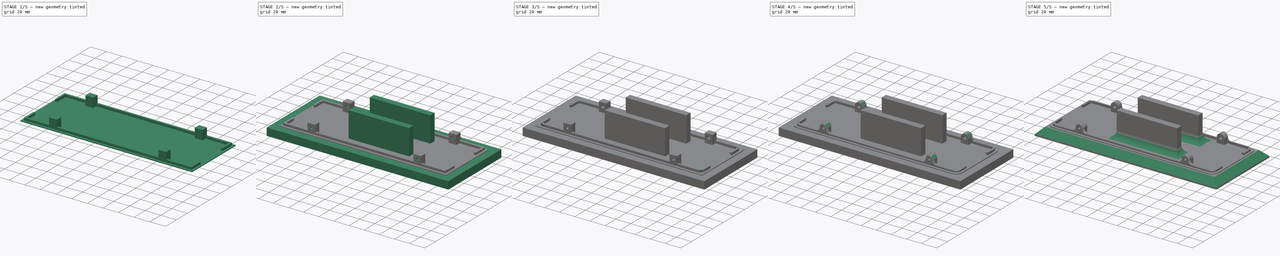
[diagram: build sequence overview — one tinted view per stage of 5, left to right]
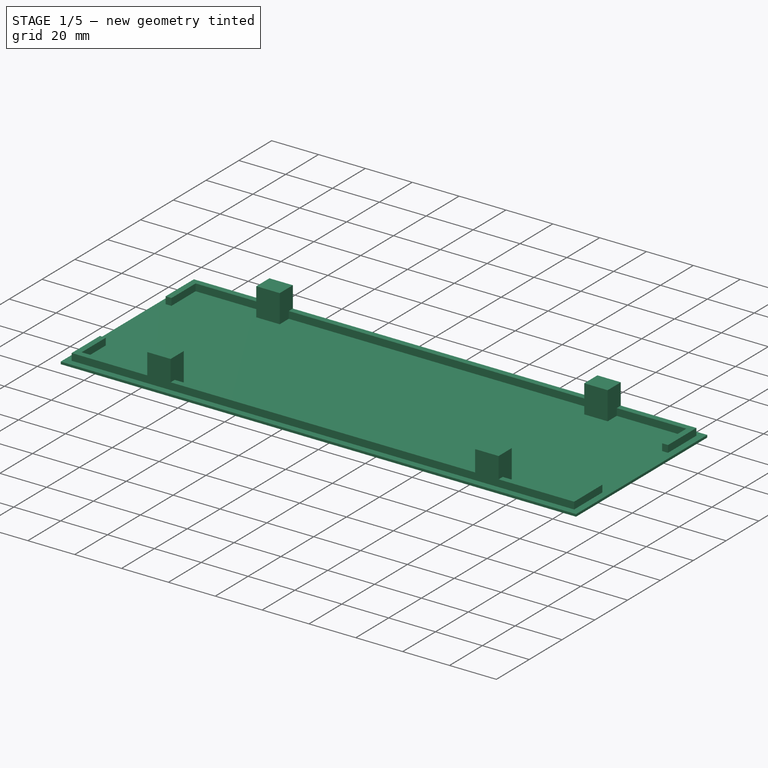
[diagram: stage 1 of 5 — iso view after this stage's code; geometry added in this stage tinted green]
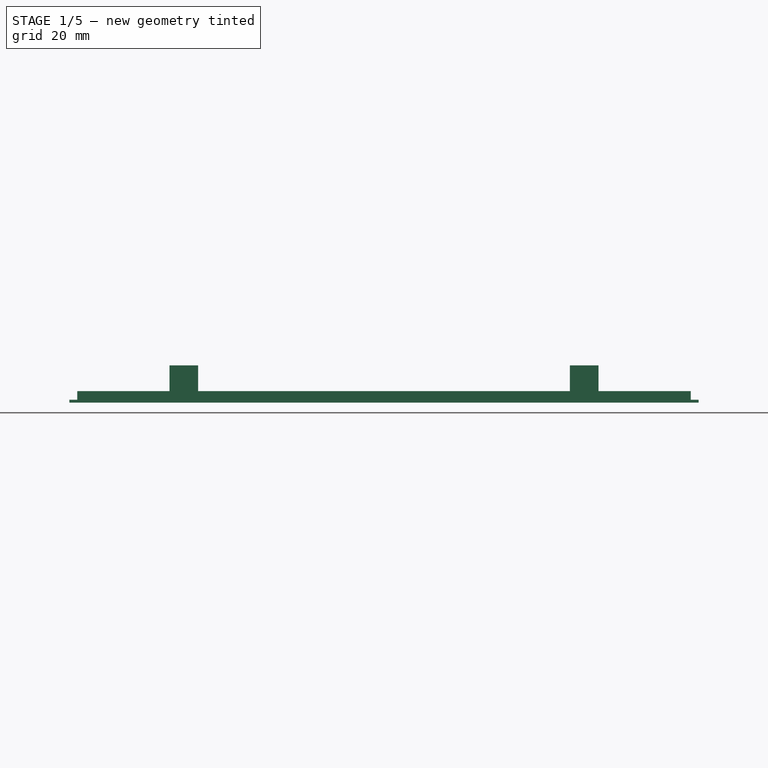
[diagram: stage 1 of 5 — front view after this stage's code; geometry added in this stage tinted green]
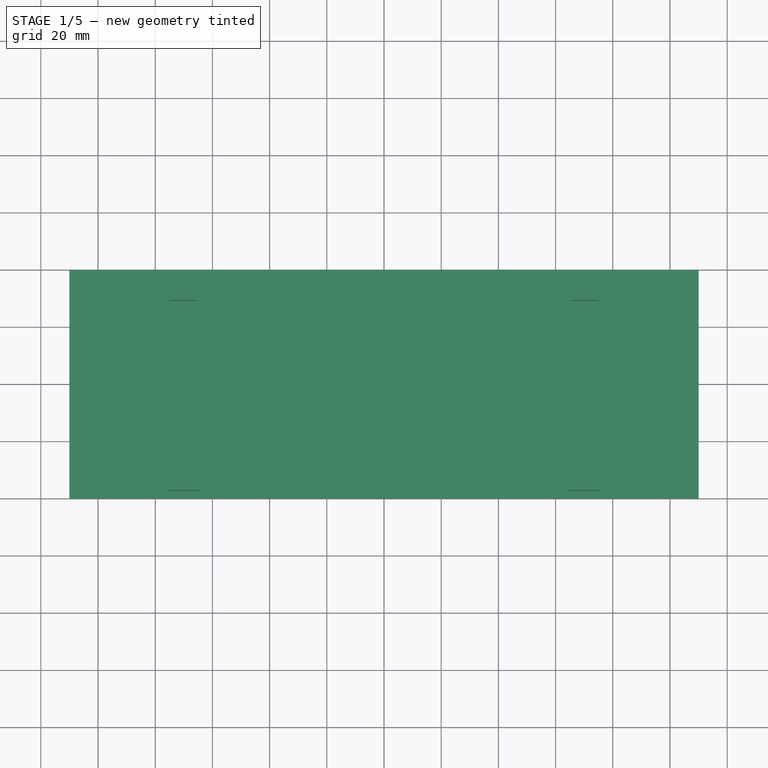
[diagram: stage 1 of 5 — top view after this stage's code; geometry added in this stage tinted green]
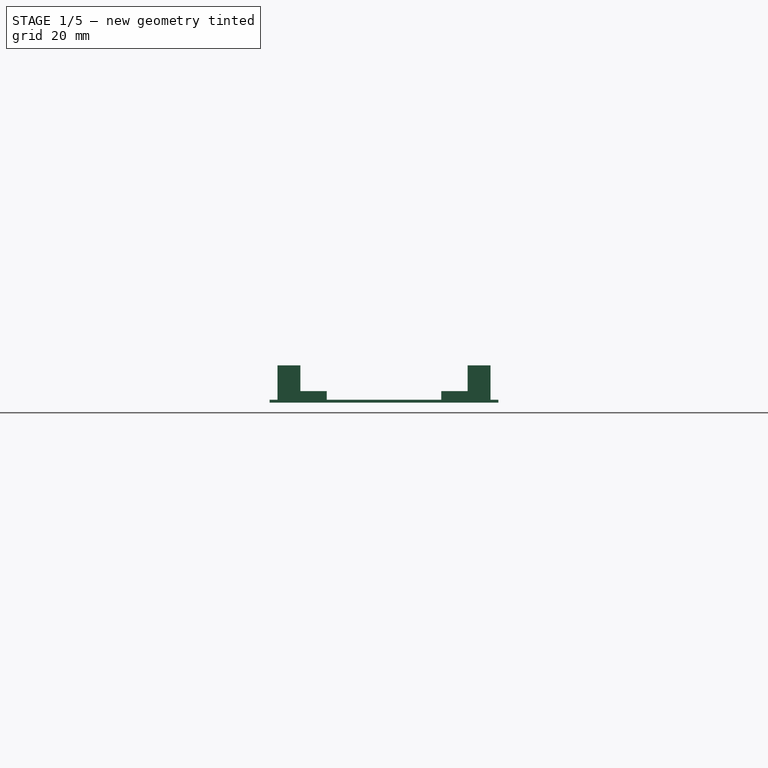
[diagram: stage 1 of 5 — right view after this stage's code; geometry added in this stage tinted green]
FCSTD DOCUMENT  (FreeCAD 1.0R39319 (Git))
Label: base_mk3
License: All rights reserved
LicenseURL: https://en.wikipedia.org/wiki/All_rights_reserved
objects: Sketcher::SketchObject×9, PartDesign::Fillet×7, PartDesign::Pad×5, PartDesign::Pocket×4, PartDesign::Chamfer×3, PartDesign::Body×1
note: 76 computed .brp shape members not serialized (recipe doc carries the construction recipe); baked Part::Feature solids carry a one-line shape summary decoded from their .brp

FEATURE [Sketcher::SketchObject] Sketch
  ArcFitTolerance = 1e-06
  AttachmentSupport = -> [XY_Plane]
  FullyConstrained = true
  MakeInternals = false
  MapMode = 5
  sketch-geometry (4):
    g0: LineSegment StartX=-110 StartY=40 StartZ=0 EndX=-110 EndY=-40 EndZ=0
    g1: LineSegment StartX=-110 StartY=-40 StartZ=0 EndX=110 EndY=-40 EndZ=0
    g2: LineSegment StartX=110 StartY=-40 StartZ=0 EndX=110 EndY=40 EndZ=0
    g3: LineSegment StartX=110 StartY=40 StartZ=0 EndX=-110 EndY=40 EndZ=0
  constraints (12):
    c: Coincident(g0,g1)
    c: Coincident(g1,g2)
    c: Coincident(g2,g3)
    c: Coincident(g3,g0)
    c: Vertical(g0)
    c: Vertical(g2)
    c: Horizontal(g1)
    c: Horizontal(g3)
    c: DistanceX(g3,g3) = 220
    c: DistanceX(g0,g-1) = 110
    c: DistanceY(g0,g0) = 80
    c: DistanceY(g-1,g0) = 40
FEATURE [PartDesign::Pad] Pad
  Direction = (0,0,1)
  Length = 1
  Length2 = 10
  Profile = -> Sketch
  ReferenceAxis = -> Sketch [N_Axis]
  Refine = true
  Suppressed = false
  Type = 0
FEATURE [Sketcher::SketchObject] Sketch001  label="perimter_wall"
  ArcFitTolerance = 1e-06
  AttachmentSupport = -> [Pad]
  ExternalGeometry = -> [Pad]
  FullyConstrained = true
  MakeInternals = false
  MapMode = 5
  Placement = pos=(0,0,1) rot=(0,0,1;0rad)
  sketch-geometry (8):
    g0: LineSegment StartX=-107.25 StartY=37.25 StartZ=0 EndX=-107.25 EndY=-37.25 EndZ=0
    g1: LineSegment StartX=-107.25 StartY=-37.25 StartZ=0 EndX=107.25 EndY=-37.25 EndZ=0
    g2: LineSegment StartX=107.25 StartY=-37.25 StartZ=0 EndX=107.25 EndY=37.25 EndZ=0
    g3: LineSegment StartX=107.25 StartY=37.25 StartZ=0 EndX=-107.25 EndY=37.25 EndZ=0
    g4: LineSegment StartX=-104.75 StartY=34.75 StartZ=0 EndX=-104.75 EndY=-34.75 EndZ=0
    g5: LineSegment StartX=-104.75 StartY=-34.75 StartZ=0 EndX=104.75 EndY=-34.75 EndZ=0
    g6: LineSegment StartX=104.75 StartY=-34.75 StartZ=0 EndX=104.75 EndY=34.75 EndZ=0
    g7: LineSegment StartX=104.75 StartY=34.75 StartZ=0 EndX=-104.75 EndY=34.75 EndZ=0
  constraints (24):
    c: Coincident(g0,g1)
    c: Coincident(g1,g2)
    c: Coincident(g2,g3)
    c: Coincident(g3,g0)
    c: Vertical(g0)
    c: Vertical(g2)
    c: Horizontal(g1)
    c: Horizontal(g3)
    c: DistanceX(g-3,g0) = 2.75
    c: DistanceY(g0,g-3) = 2.75
    c: DistanceX(g1,g-4) = 2.75
    c: DistanceY(g-4,g1) = 2.75
    c: Coincident(g4,g5)
    c: Coincident(g5,g6)
    c: Coincident(g6,g7)
    c: Coincident(g7,g4)
    c: Vertical(g4)
    c: Vertical(g6)
    c: Horizontal(g5)
    c: Horizontal(g7)
    c: DistanceX(g0,g4) = 2.5
    c: DistanceY(g4,g0) = 2.5
    c: DistanceX(g5,g1) = 2.5
    c: DistanceY(g1,g5) = 2.5
FEATURE [PartDesign::Pad] Pad001
  BaseFeature = -> Pad
  Direction = (0,0,1)
  Length = 3
  Length2 = 10
  Profile = -> Sketch001
  ReferenceAxis = -> Sketch001 [N_Axis]
  Refine = true
  Suppressed = false
  Type = 0
FEATURE [Sketcher::SketchObject] Sketch002  label="slots_in_edging"
  ArcFitTolerance = 1e-06
  AttachmentSupport = -> [Pad001]
  ExternalGeometry = -> [Pad001]
  FullyConstrained = true
  MakeInternals = false
  MapMode = 5
  Placement = pos=(0,0,4) rot=(0,0,1;0rad)
  sketch-geometry (8):
    g0: LineSegment StartX=-107.25 StartY=20 StartZ=0 EndX=-107.25 EndY=-20 EndZ=0
    g1: LineSegment StartX=-107.25 StartY=-20 StartZ=0 EndX=-104.75 EndY=-20 EndZ=0
    g2: LineSegment StartX=-104.75 StartY=-20 StartZ=0 EndX=-104.75 EndY=20 EndZ=0
    g3: LineSegment StartX=-104.75 StartY=20 StartZ=0 EndX=-107.25 EndY=20 EndZ=0
    g4: LineSegment StartX=104.75 StartY=20 StartZ=0 EndX=104.75 EndY=-20 EndZ=0
    g5: LineSegment StartX=104.75 StartY=-20 StartZ=0 EndX=107.25 EndY=-20 EndZ=0
    g6: LineSegment StartX=107.25 StartY=-20 StartZ=0 EndX=107.25 EndY=20 EndZ=0
    g7: LineSegment StartX=107.25 StartY=20 StartZ=0 EndX=104.75 EndY=20 EndZ=0
  constraints (24):
    c: Coincident(g0,g1)
    c: Coincident(g1,g2)
    c: Coincident(g2,g3)
    c: Coincident(g3,g0)
    c: Vertical(g0)
    c: Vertical(g2)
    c: Horizontal(g1)
    c: Horizontal(g3)
    c: Coincident(g4,g5)
    c: Coincident(g5,g6)
    c: Coincident(g6,g7)
    c: Coincident(g7,g4)
    c: Vertical(g4)
    c: Vertical(g6)
    c: Horizontal(g5)
    c: Horizontal(g7)
    c: Horizontal(g1,g4)
    c: Horizontal(g4,g2)
    c: DistanceY(g2,g2) = 40
    c: DistanceY(g-1,g2) = 20
    c: Vertical(g4,g-5)
    c: Vertical(g6,g-6)
    c: Vertical(g-3,g2)
    c: Vertical(g-4,g0)
FEATURE [Sketcher::SketchObject] Sketch007  label="outer_base"
  ArcFitTolerance = 1e-06
  FullyConstrained = true
  MakeInternals = false
  MapMode = 5
  Placement = pos=(0,0,0) rot=(1,0,0;3.14159rad)
  sketch-geometry (4):
    g0: LineSegment StartX=-120 StartY=50 StartZ=0 EndX=-120 EndY=-50 EndZ=0
    g1: LineSegment StartX=-120 StartY=-50 StartZ=0 EndX=120 EndY=-50 EndZ=0
    g2: LineSegment StartX=120 StartY=-50 StartZ=0 EndX=120 EndY=50 EndZ=0
    g3: LineSegment StartX=120 StartY=50 StartZ=0 EndX=-120 EndY=50 EndZ=0
  constraints (12):
    c: Coincident(g0,g1)
    c: Coincident(g1,g2)
    c: Coincident(g2,g3)
    c: Coincident(g3,g0)
    c: Vertical(g0)
    c: Vertical(g2)
    c: Horizontal(g1)
    c: Horizontal(g3)
    c: DistanceX(g0,g-3) = 10
    c: DistanceY(g-3,g0) = 10
    c: DistanceX(g-4,g1) = 10
    c: DistanceY(g1,g-4) = 10
FEATURE [Sketcher::SketchObject] Sketch008  label="battery_supports"
  ArcFitTolerance = 1e-06
  FullyConstrained = true
  MakeInternals = false
  MapMode = 5
  Placement = pos=(0,0,1) rot=(0,0,1;0rad)
  sketch-geometry (8):
    g0: LineSegment StartX=-30 StartY=24 StartZ=0 EndX=-30 EndY=16 EndZ=0
    g1: LineSegment StartX=-30 StartY=16 StartZ=0 EndX=50 EndY=16 EndZ=0
    g2: LineSegment StartX=50 StartY=16 StartZ=0 EndX=50 EndY=24 EndZ=0
    g3: LineSegment StartX=50 StartY=24 StartZ=0 EndX=-30 EndY=24 EndZ=0
    g4: LineSegment StartX=-30 StartY=-16 StartZ=0 EndX=-30 EndY=-24 EndZ=0
    g5: LineSegment StartX=-30 StartY=-24 StartZ=0 EndX=50 EndY=-24 EndZ=0
    g6: LineSegment StartX=50 StartY=-24 StartZ=0 EndX=50 EndY=-16 EndZ=0
    g7: LineSegment StartX=50 StartY=-16 StartZ=0 EndX=-30 EndY=-16 EndZ=0
  constraints (24):
    c: Coincident(g0,g1)
    c: Coincident(g1,g2)
    c: Coincident(g2,g3)
    c: Coincident(g3,g0)
    c: Vertical(g0)
    c: Vertical(g2)
    c: Horizontal(g1)
    c: Horizontal(g3)
    c: Coincident(g4,g5)
    c: Coincident(g5,g6)
    c: Coincident(g6,g7)
    c: Coincident(g7,g4)
    c: Vertical(g4)
    c: Vertical(g6)
    c: Horizontal(g5)
    c: Horizontal(g7)
    c: Equal(g6,g2)
    c: DistanceY(g6,g6) = 8
    c: Vertical(g6,g1)
    c: DistanceX(g0,g-1) = 30
    c: Equal(g7,g3)
    c: DistanceX(g-1,g1) = 50
    c: DistanceY(g-1,g0) = 16
    c: DistanceY(g4,g-1) = 16
FEATURE [PartDesign::Pocket] Pocket
  BaseFeature = -> Pad001
  Direction = (0,0,-1)
  Length = 3
  Length2 = 5
  Profile = -> Sketch002
  ReferenceAxis = -> Sketch002 [N_Axis]
  Refine = true
  Suppressed = false
  Type = 0
FEATURE [Sketcher::SketchObject] Sketch003  label="threaded_bush_holders"
  ArcFitTolerance = 1e-06
  ExternalGeometry = -> [Pocket]
  FullyConstrained = true
  MakeInternals = false
  MapMode = 5
  Placement = pos=(0,0,1) rot=(0,0,1;0rad)
  sketch-geometry (16):
    g0: LineSegment StartX=-75 StartY=29.25 StartZ=0 EndX=-65 EndY=29.25 EndZ=0
    g1: LineSegment StartX=-65 StartY=29.25 StartZ=0 EndX=-65 EndY=37.25 EndZ=0
    g2: LineSegment StartX=-65 StartY=37.25 StartZ=0 EndX=-75 EndY=37.25 EndZ=0
    g3: LineSegment StartX=-75 StartY=37.25 StartZ=0 EndX=-75 EndY=29.25 EndZ=0
    g4: LineSegment StartX=65 StartY=29.25 StartZ=0 EndX=75 EndY=29.25 EndZ=0
    g5: LineSegment StartX=75 StartY=29.25 StartZ=0 EndX=75 EndY=37.25 EndZ=0
    g6: LineSegment StartX=75 StartY=37.25 StartZ=0 EndX=65 EndY=37.25 EndZ=0
    g7: LineSegment StartX=65 StartY=37.25 StartZ=0 EndX=65 EndY=29.25 EndZ=0
    g8: LineSegment StartX=65 StartY=-29.25 StartZ=0 EndX=65 EndY=-37.25 EndZ=0
    g9: LineSegment StartX=65 StartY=-37.25 StartZ=0 EndX=75 EndY=-37.25 EndZ=0
    g10: LineSegment StartX=75 StartY=-37.25 StartZ=0 EndX=75 EndY=-29.25 EndZ=0
    g11: LineSegment StartX=75 StartY=-29.25 StartZ=0 EndX=65 EndY=-29.25 EndZ=0
    g12: LineSegment StartX=-75 StartY=-29.25 StartZ=0 EndX=-75 EndY=-37.25 EndZ=0
    g13: LineSegment StartX=-75 StartY=-37.25 StartZ=0 EndX=-65 EndY=-37.25 EndZ=0
    g14: LineSegment StartX=-65 StartY=-37.25 StartZ=0 EndX=-65 EndY=-29.25 EndZ=0
    g15: LineSegment StartX=-65 StartY=-29.25 StartZ=0 EndX=-75 EndY=-29.25 EndZ=0
  constraints (48):
    c: Coincident(g0,g1)
    c: Coincident(g1,g2)
    c: Coincident(g2,g3)
    c: Coincident(g3,g0)
    c: Horizontal(g0)
    c: Horizontal(g2)
    c: Vertical(g1)
    c: Vertical(g3)
    c: Coincident(g4,g5)
    c: Coincident(g5,g6)
    c: Coincident(g6,g7)
    c: Coincident(g7,g4)
    c: Horizontal(g4)
    c: Horizontal(g6)
    c: Vertical(g5)
    c: Vertical(g7)
    c: Coincident(g8,g9)
    c: Coincident(g9,g10)
    c: Coincident(g10,g11)
    c: Coincident(g11,g8)
    c: Vertical(g8)
    c: Vertical(g10)
    c: Horizontal(g9)
    c: Horizontal(g11)
    c: Coincident(g12,g13)
    c: Coincident(g13,g14)
    c: Coincident(g14,g15)
    c: Coincident(g15,g12)
    c: Vertical(g12)
    c: Vertical(g14)
    c: Horizontal(g13)
    c: Horizontal(g15)
    c: Equal(g12,g3)
    c: Equal(g3,g5)
    c: Equal(g5,g10)
    c: Equal(g15,g11)
    c: Equal(g11,g4)
    c: Equal(g4,g0)
    c: DistanceX(g15,g15) = 10
    c: DistanceY(g12,g12) = 8
    c: Vertical(g14,g0)
    c: Vertical(g8,g4)
    c: DistanceX(g0,g-1) = 65
    c: DistanceX(g-1,g4) = 65
    c: Horizontal(g-3,g5)
    c: Horizontal(g-4,g9)
    c: Horizontal(g13,g-4)
    c: Horizontal(g5,g1)
FEATURE [PartDesign::Pad] Pad002
  BaseFeature = -> Pocket
  Direction = (0,0,1)
  Length = 12
  Length2 = 10
  Profile = -> Sketch003
  ReferenceAxis = -> Sketch003 [N_Axis]
  Refine = true
  Suppressed = false
  Type = 0
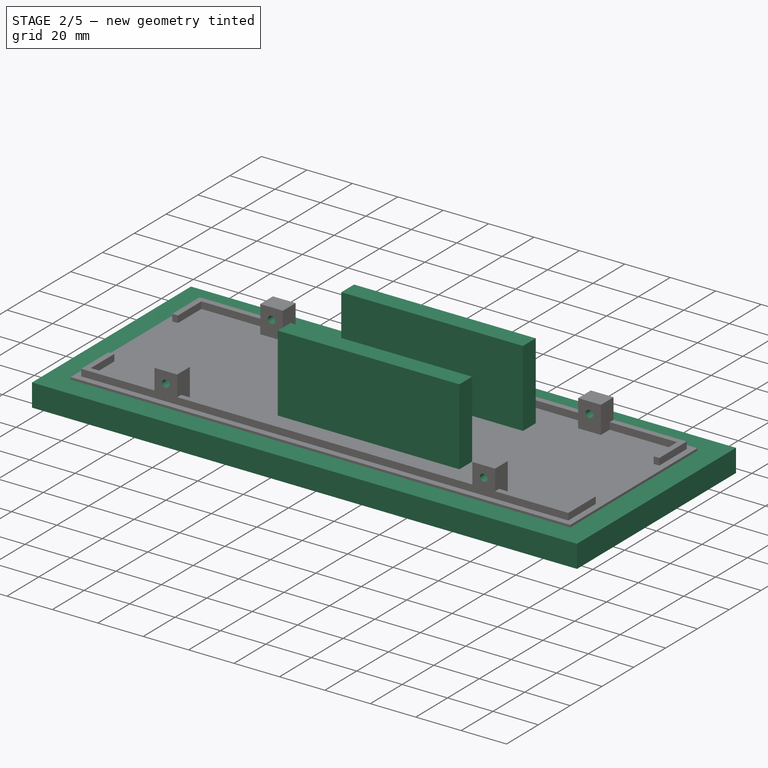
[diagram: stage 2 of 5 — iso view after this stage's code; geometry added in this stage tinted green]
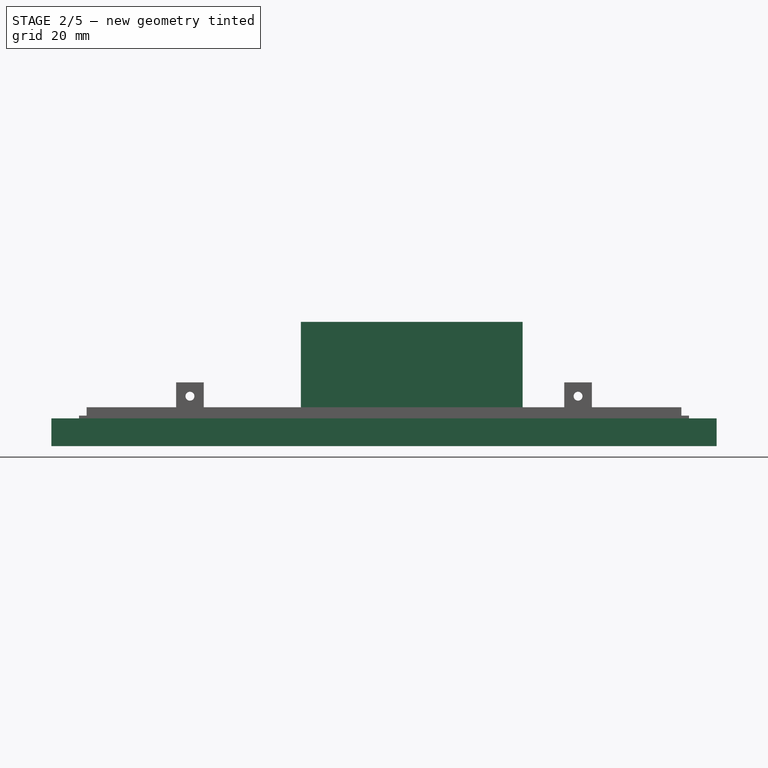
[diagram: stage 2 of 5 — front view after this stage's code; geometry added in this stage tinted green]
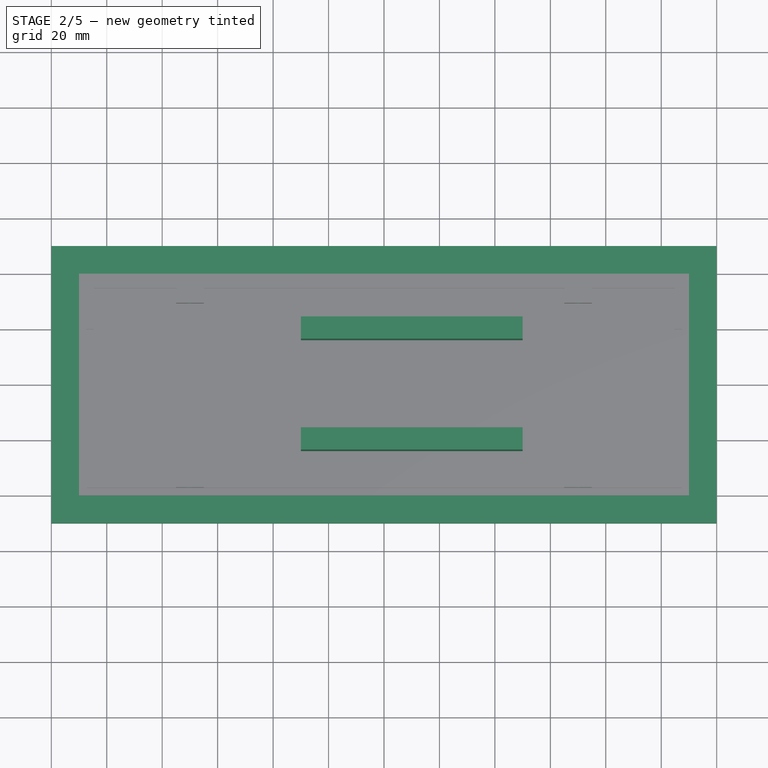
[diagram: stage 2 of 5 — top view after this stage's code; geometry added in this stage tinted green]
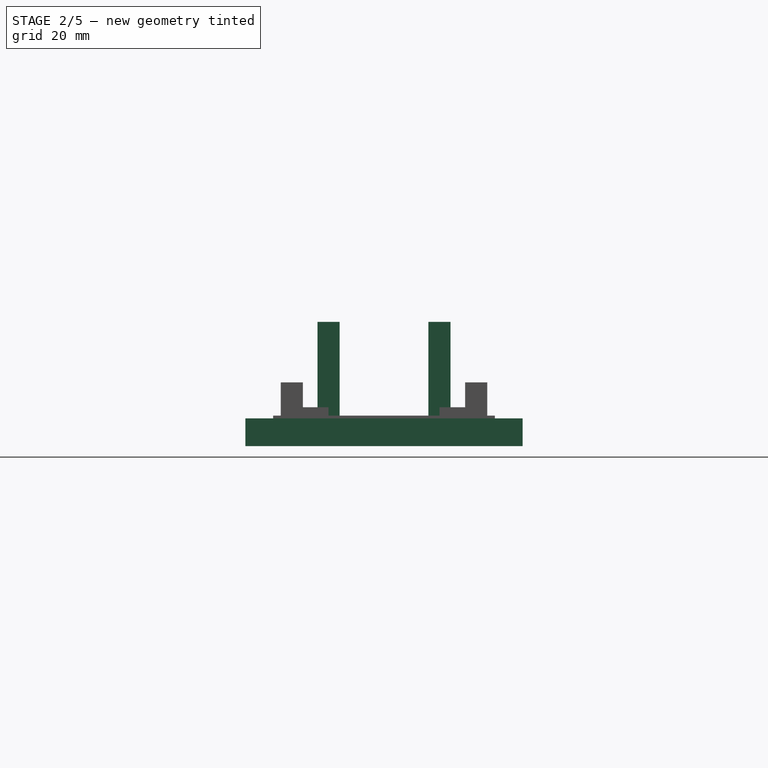
[diagram: stage 2 of 5 — right view after this stage's code; geometry added in this stage tinted green]
FEATURE [PartDesign::Pad] Pad003
  BaseFeature = -> Pad002
  Direction = (0,0,1)
  Length = 33.8
  Length2 = 10
  Profile = -> Sketch008
  ReferenceAxis = -> Sketch008 [N_Axis]
  Refine = true
  Suppressed = false
  Type = 0
FEATURE [PartDesign::Pad] Pad004
  BaseFeature = -> Pad003
  Direction = (0,-1e-16,-1)
  Length = 10
  Length2 = 10
  Profile = -> Sketch007
  ReferenceAxis = -> Sketch007 [N_Axis]
  Refine = true
  Suppressed = false
  Type = 0
FEATURE [Sketcher::SketchObject] Sketch009  label="screw_holes"
  ArcFitTolerance = 1e-06
  AttachmentSupport = -> [Pad004]
  ExternalGeometry = -> [Pad004]
  FullyConstrained = true
  MakeInternals = false
  MapMode = 5
  Placement = pos=(0,-37.25,0) rot=(1,0,0;1.5708rad)
  sketch-geometry (2):
    g0: Circle CenterX=-70 CenterY=8 CenterZ=0 NormalX=0 NormalY=0 NormalZ=1 AngleXU=0 Radius=1.6
    g1: Circle CenterX=70 CenterY=8 CenterZ=0 NormalX=0 NormalY=0 NormalZ=1 AngleXU=0 Radius=1.6
  constraints (6):
    c: Equal(g1,g0)
    c: Diameter(g0) = 3.2
    c: Horizontal(g0,g1)
    c: DistanceY(g-3,g0) = 7
    c: DistanceX(g0,g-1) = 70
    c: DistanceX(g-1,g1) = 70
FEATURE [PartDesign::Pocket] Pocket001
  BaseFeature = -> Pad004
  Direction = (0,1,-2e-16)
  Length = 80
  Length2 = 5
  Profile = -> Sketch009
  ReferenceAxis = -> Sketch009 [N_Axis]
  Refine = true
  Suppressed = false
  Type = 0
FEATURE [Sketcher::SketchObject] Sketch010
  ArcFitTolerance = 1e-06
  AttachmentSupport = -> [Pocket001]
  ExternalGeometry = -> [Pocket001]
  FullyConstrained = true
  MakeInternals = false
  MapMode = 5
  Placement = pos=(0,-29.25,0) rot=(0,0.707107,0.707107;3.14159rad)
  sketch-geometry (2):
    g0: Circle CenterX=-70 CenterY=8 CenterZ=0 NormalX=0 NormalY=0 NormalZ=1 AngleXU=0 Radius=2
    g1: Circle CenterX=70 CenterY=8 CenterZ=0 NormalX=0 NormalY=0 NormalZ=1 AngleXU=0 Radius=2
  constraints (6):
    c: Equal(g1,g0)
    c: Diameter(g0) = 4
    c: Horizontal(g0,g1)
    c: DistanceY(g-3,g0) = 7
    c: DistanceX(g0,g-1) = 70
    c: DistanceX(g-1,g1) = 70
FEATURE [PartDesign::Pocket] Pocket002
  BaseFeature = -> Pocket001
  Direction = (0,-1,2e-16)
  Length = 6
  Length2 = 5
  Profile = -> Sketch010
  ReferenceAxis = -> Sketch010 [N_Axis]
  Refine = true
  Suppressed = false
  Type = 0
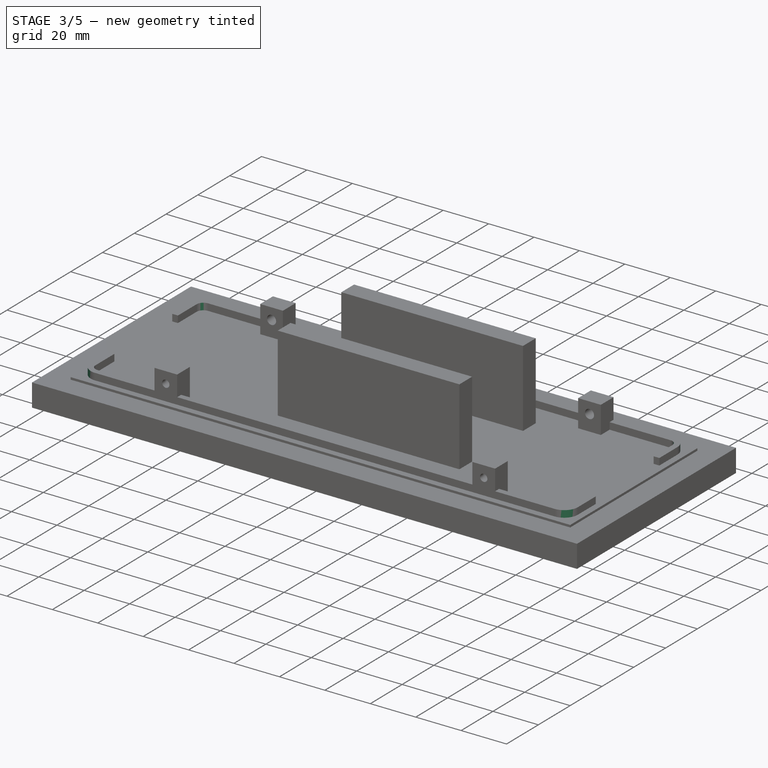
[diagram: stage 3 of 5 — iso view after this stage's code; geometry added in this stage tinted green]
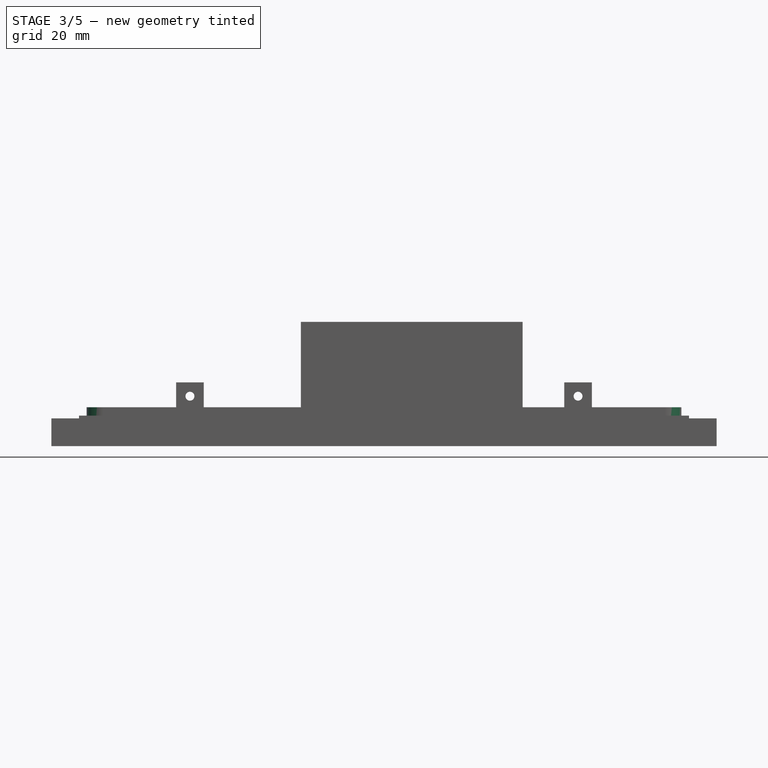
[diagram: stage 3 of 5 — front view after this stage's code; geometry added in this stage tinted green]
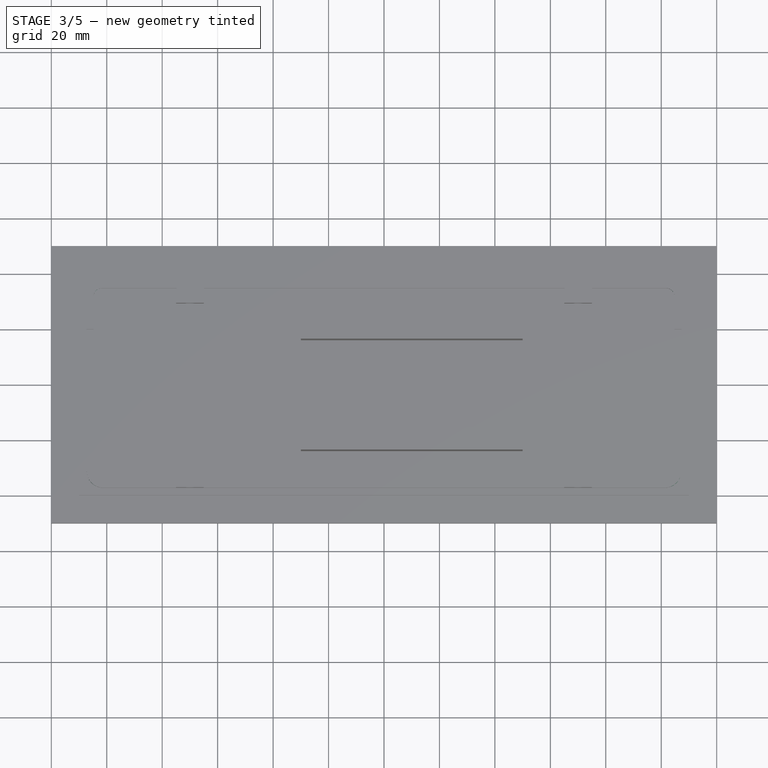
[diagram: stage 3 of 5 — top view after this stage's code; geometry added in this stage tinted green]
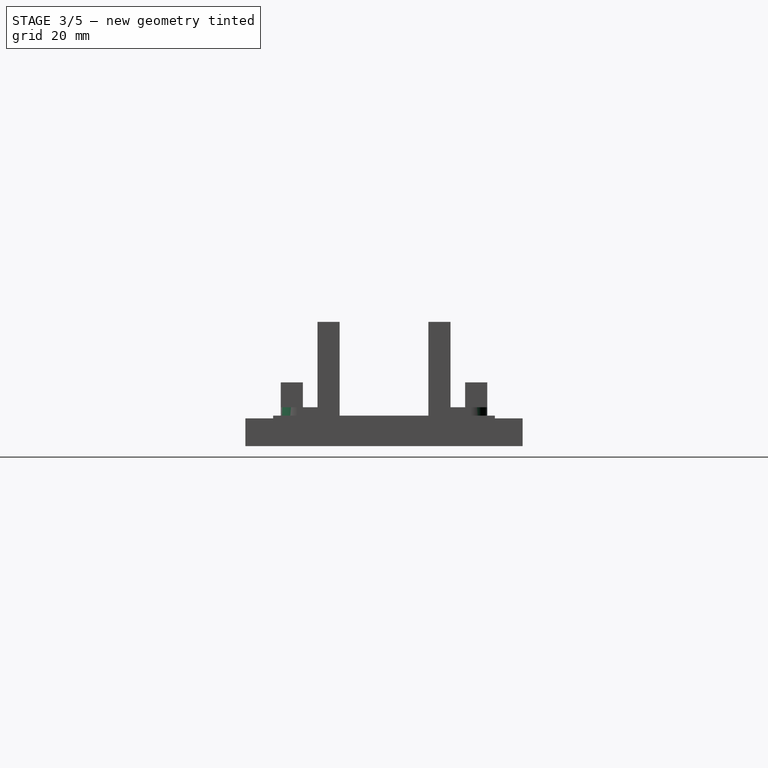
[diagram: stage 3 of 5 — right view after this stage's code; geometry added in this stage tinted green]
FEATURE [Sketcher::SketchObject] Sketch011
  ArcFitTolerance = 1e-06
  AttachmentSupport = -> [Pocket002]
  ExternalGeometry = -> [Pocket002]
  FullyConstrained = true
  MakeInternals = false
  MapMode = 5
  Placement = pos=(0,29.25,0) rot=(1,0,0;1.5708rad)
  sketch-geometry (2):
    g0: Circle CenterX=-70 CenterY=8 CenterZ=0 NormalX=0 NormalY=0 NormalZ=1 AngleXU=0 Radius=2
    g1: Circle CenterX=70 CenterY=8 CenterZ=0 NormalX=0 NormalY=0 NormalZ=1 AngleXU=0 Radius=2
  constraints (6):
    c: Equal(g1,g0)
    c: Diameter(g0) = 4
    c: Horizontal(g0,g1)
    c: DistanceY(g-3,g0) = 7
    c: DistanceX(g0,g-1) = 70
    c: DistanceX(g-1,g1) = 70
FEATURE [PartDesign::Pocket] Pocket003
  BaseFeature = -> Pocket002
  Direction = (0,1,-2e-16)
  Length = 6
  Length2 = 5
  Profile = -> Sketch011
  ReferenceAxis = -> Sketch011 [N_Axis]
  Refine = true
  Suppressed = false
  Type = 0
FEATURE [PartDesign::Fillet] Fillet
  Base = -> Pocket003 [Edge94,Edge154,Edge82,Edge149]
  BaseFeature = -> Pocket003
  Radius = 3
  Refine = true
  SupportTransform = false
  Suppressed = false
  UseAllEdges = false
FEATURE [PartDesign::Fillet] Fillet001
  Base = -> Fillet [Edge135,Edge58,Edge140,Edge64]
  BaseFeature = -> Fillet
  Radius = 6
  Refine = true
  SupportTransform = false
  Suppressed = false
  UseAllEdges = false
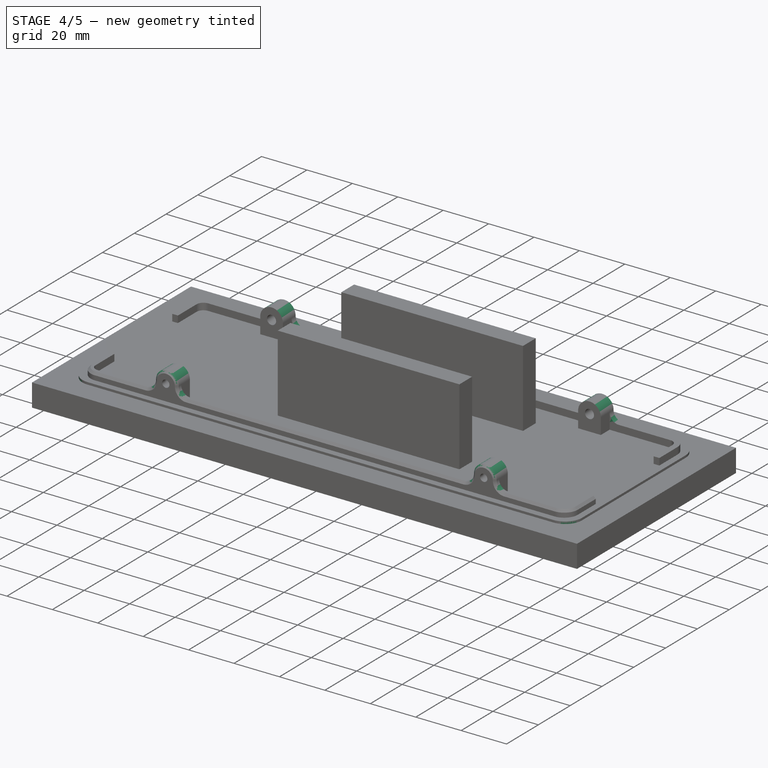
[diagram: stage 4 of 5 — iso view after this stage's code; geometry added in this stage tinted green]
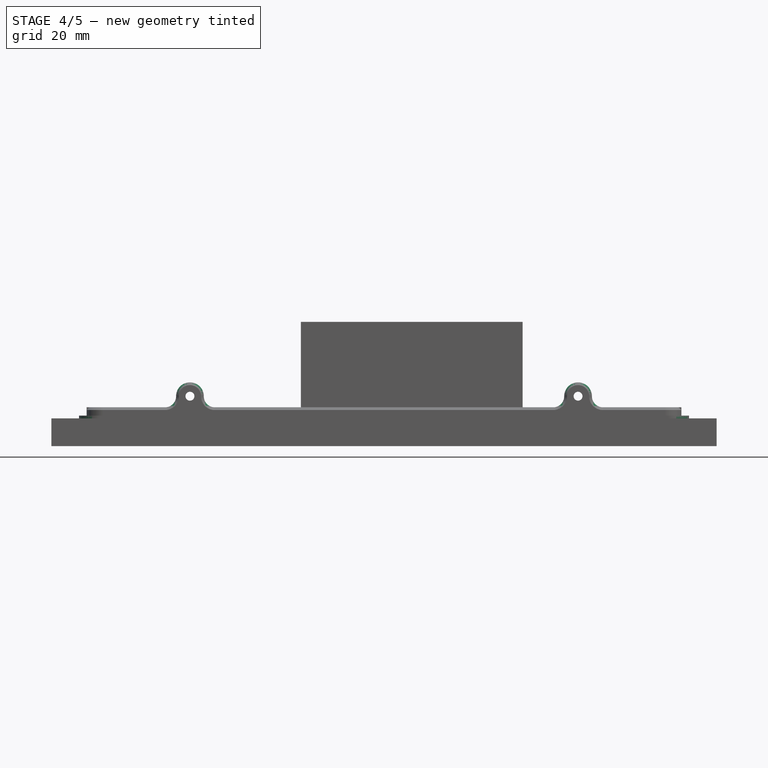
[diagram: stage 4 of 5 — front view after this stage's code; geometry added in this stage tinted green]
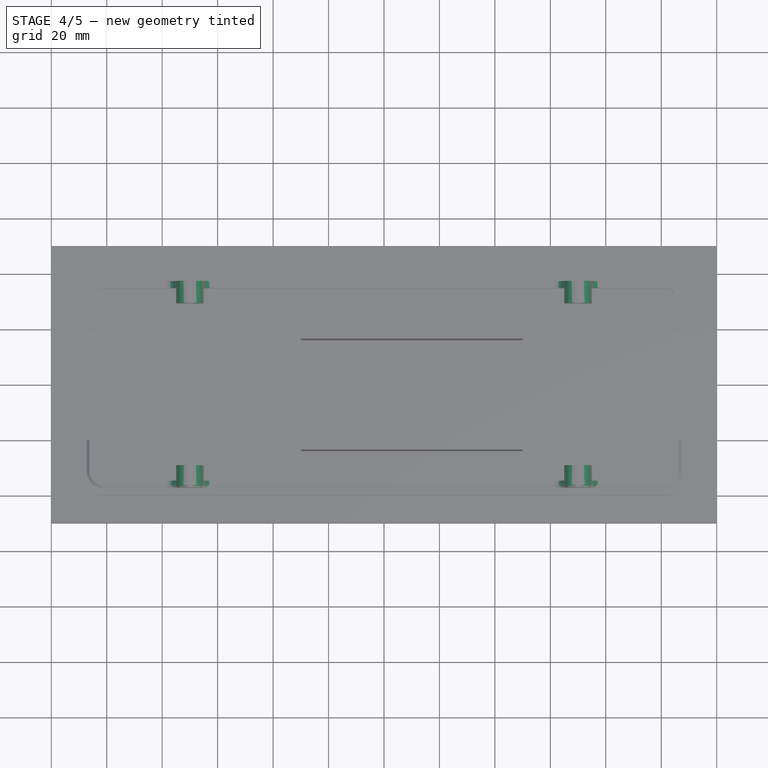
[diagram: stage 4 of 5 — top view after this stage's code; geometry added in this stage tinted green]
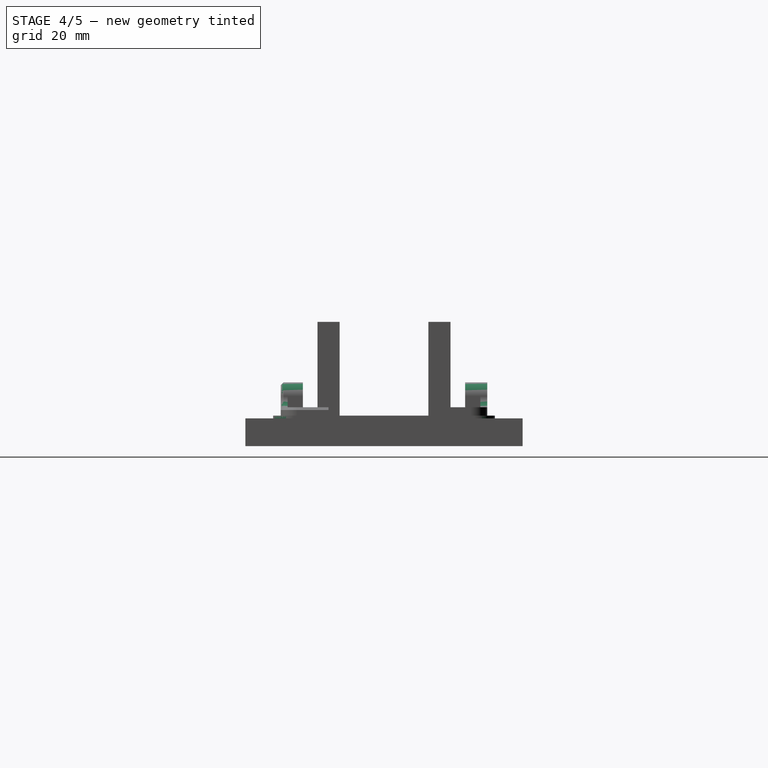
[diagram: stage 4 of 5 — right view after this stage's code; geometry added in this stage tinted green]
FEATURE [PartDesign::Fillet] Fillet002
  Base = -> Fillet001 [Edge112,Edge109,Edge114,Edge110]
  BaseFeature = -> Fillet001
  Radius = 7.5
  Refine = true
  SupportTransform = false
  Suppressed = false
  UseAllEdges = false
FEATURE [PartDesign::Fillet] Fillet003
  Base = -> Fillet002 [Edge194,Edge198,Edge123,Edge125,Edge188,Edge178,Edge116,Edge105]
  BaseFeature = -> Fillet002
  Radius = 4.99
  Refine = true
  SupportTransform = false
  Suppressed = false
  UseAllEdges = false
FEATURE [PartDesign::Fillet] Fillet004
  Base = -> Fillet003 [Edge216,Edge98,Edge93,Edge209,Edge198,Edge20,Edge97,Edge220]
  BaseFeature = -> Fillet003
  Radius = 4
  Refine = true
  SupportTransform = false
  Suppressed = false
  UseAllEdges = false
FEATURE [PartDesign::Chamfer] Chamfer
  Angle = 45
  Base = -> Fillet004 [Edge19]
  BaseFeature = -> Fillet004
  ChamferType = 0
  FlipDirection = false
  Refine = true
  Size = 1
  Size2 = 1
  SupportTransform = false
  Suppressed = false
  UseAllEdges = false
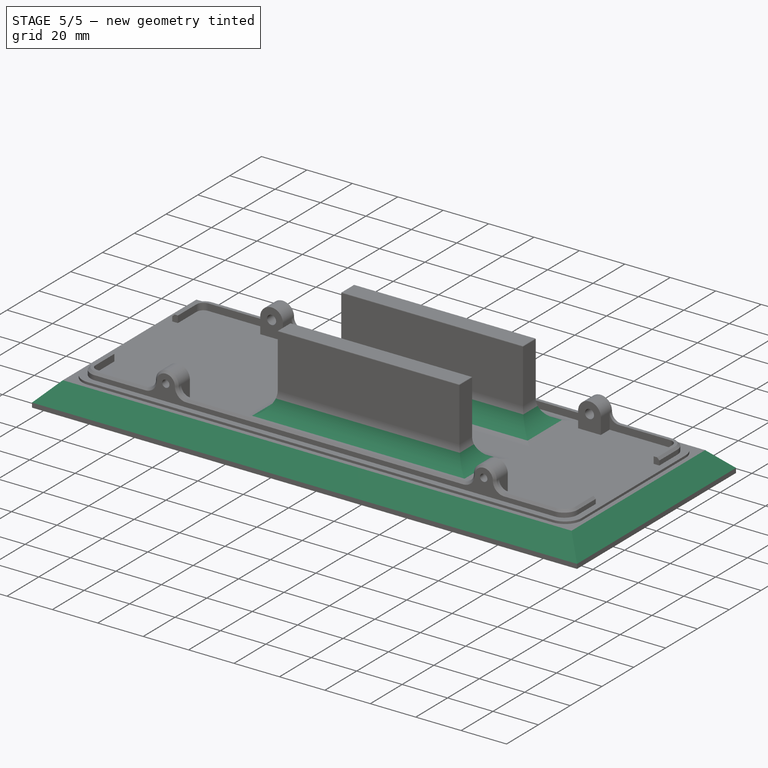
[diagram: stage 5 of 5 — iso view after this stage's code; geometry added in this stage tinted green]
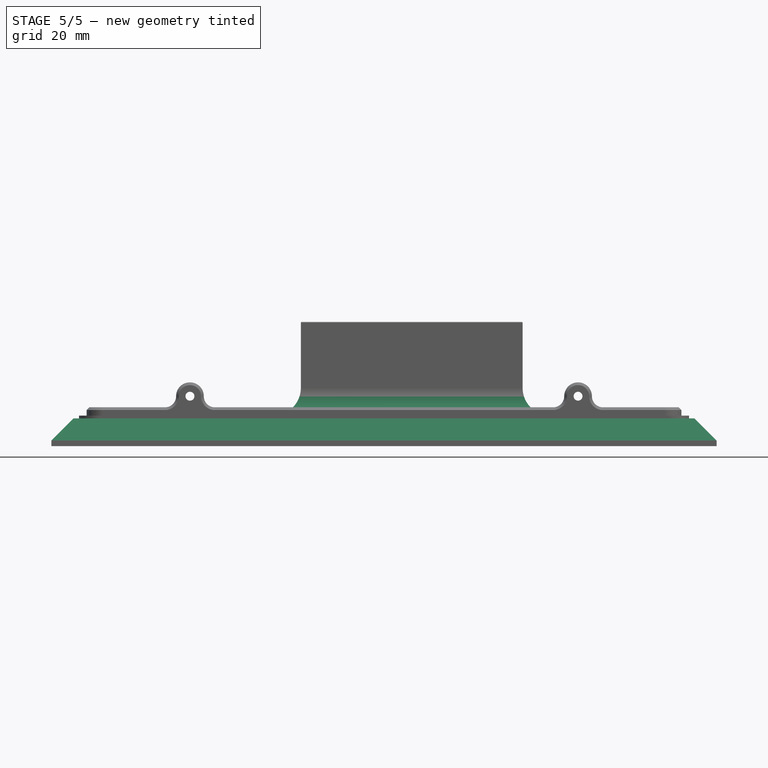
[diagram: stage 5 of 5 — front view after this stage's code; geometry added in this stage tinted green]
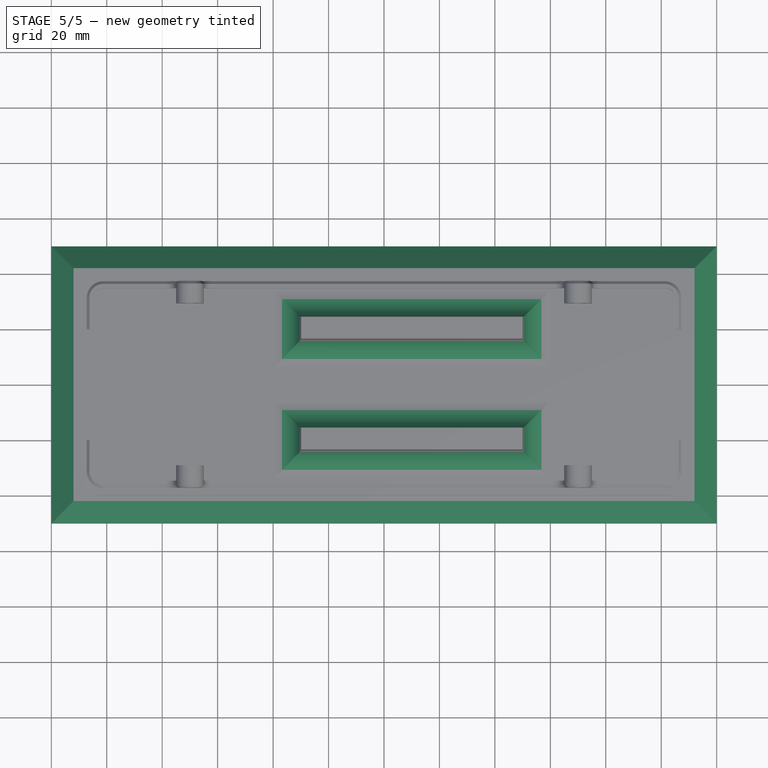
[diagram: stage 5 of 5 — top view after this stage's code; geometry added in this stage tinted green]
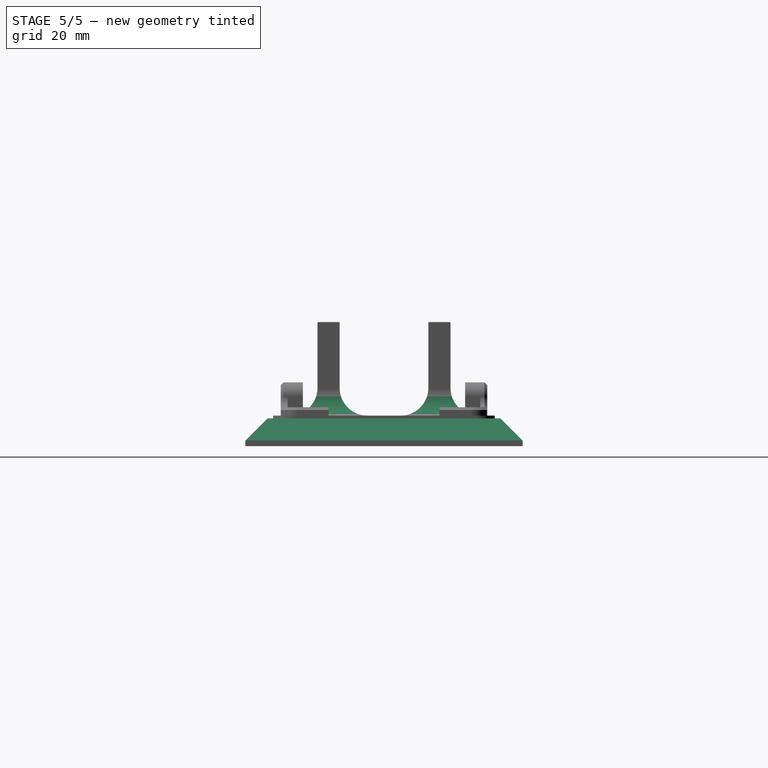
[diagram: stage 5 of 5 — right view after this stage's code; geometry added in this stage tinted green]
FEATURE [PartDesign::Chamfer] Chamfer001
  Angle = 45
  Base = -> Chamfer [Edge232]
  BaseFeature = -> Chamfer
  ChamferType = 0
  FlipDirection = false
  Refine = true
  Size = 1
  Size2 = 1
  SupportTransform = false
  Suppressed = false
  UseAllEdges = false
FEATURE [PartDesign::Fillet] Fillet005
  Base = -> Chamfer001 [Edge46,Edge45,Edge41,Edge42,Edge43,Edge44,Edge39,Edge40]
  BaseFeature = -> Chamfer001
  Radius = 10
  Refine = true
  SupportTransform = false
  Suppressed = false
  UseAllEdges = false
FEATURE [PartDesign::Fillet] Fillet006
  Base = -> Fillet005 [Edge378,Edge258,Edge257,Edge372,Edge376,Edge375,Edge260,Edge254]
  BaseFeature = -> Fillet005
  Radius = 0.3
  Refine = true
  SupportTransform = false
  Suppressed = false
  UseAllEdges = false
FEATURE [PartDesign::Chamfer] Chamfer002
  Angle = 45
  Base = -> Fillet006 [Edge270,Edge269,Edge271,Edge272]
  BaseFeature = -> Fillet006
  ChamferType = 0
  FlipDirection = false
  Refine = true
  Size = 8
  Size2 = 1
  SupportTransform = false
  Suppressed = false
  UseAllEdges = false
FEATURE [PartDesign::Body] Body
  AllowCompound = false
  Group = -> [Sketch,Pad,Sketch001,Pad001,Sketch002,Sketch003,Sketch007,Sketch008,Pocket,Pad002,Pad003,Pad004,Sketch009,Pocket001,Sketch010,Pocket002,Sketch011,Pocket003,Fillet,Fillet001,Fillet002,Fillet003,Fillet004,Chamfer,Chamfer001,Fillet005,Fillet006,Chamfer002]
  Origin = -> Origin
  Tip = -> Chamfer002
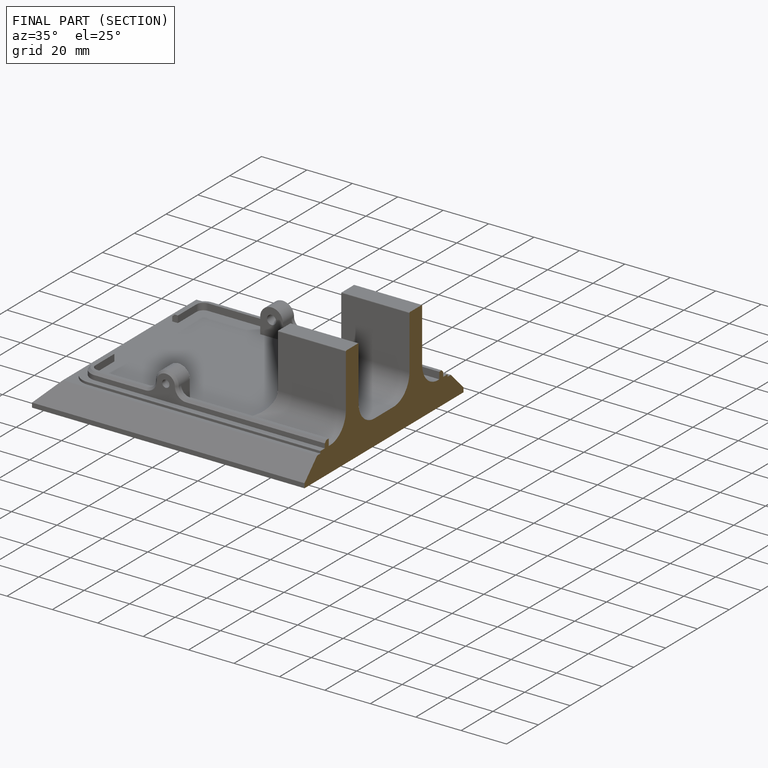
[diagram: finished part — half-section view (interior)]
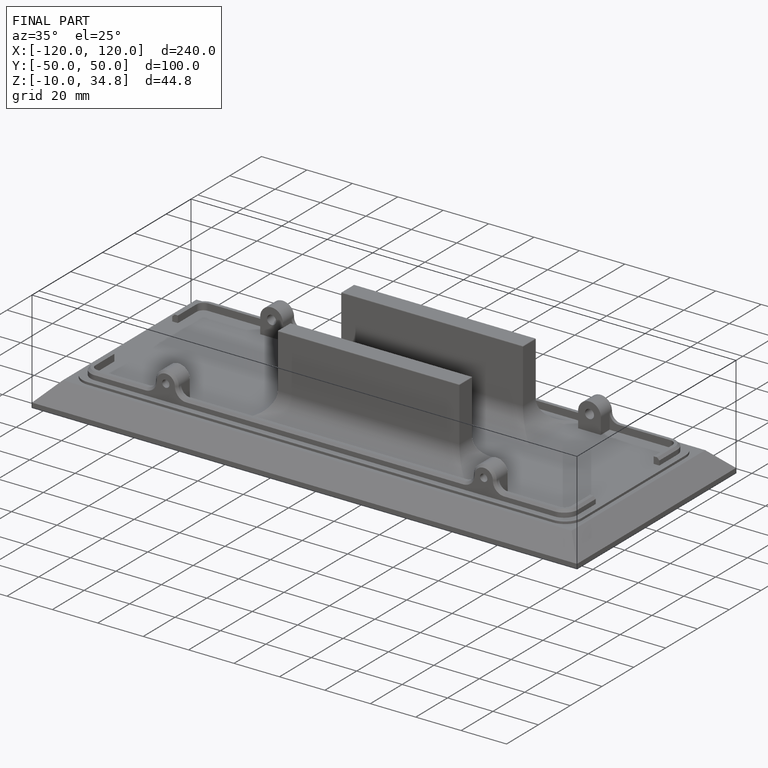
[diagram: finished part — iso view with bounding-box wireframe]
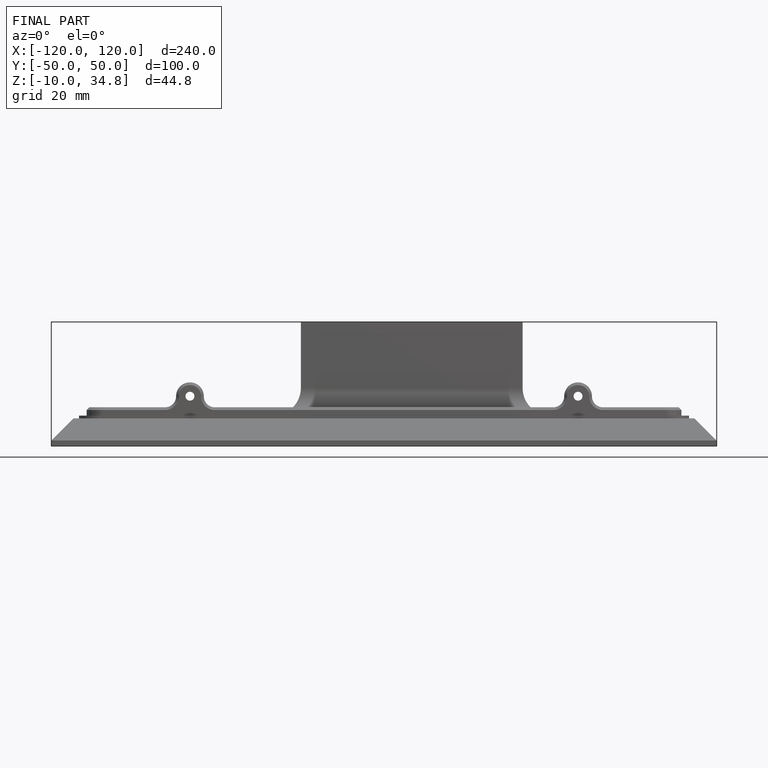
[diagram: finished part — front view with bounding-box wireframe]
